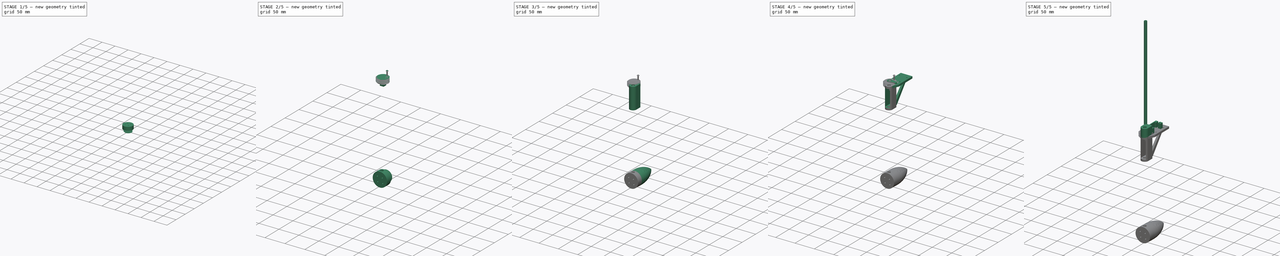
[diagram: build sequence overview — one tinted view per stage of 5, left to right]
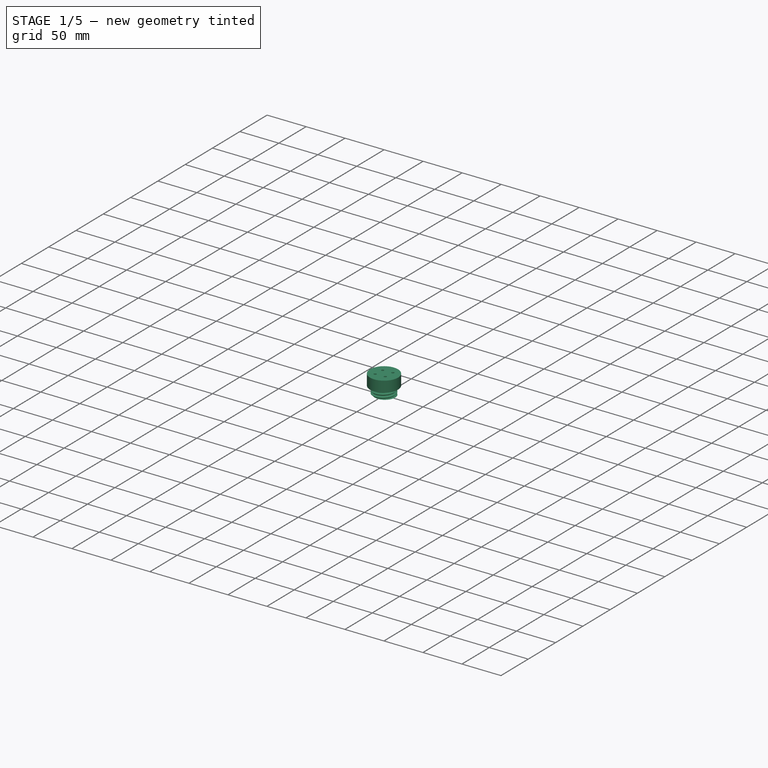
[diagram: stage 1 of 5 — iso view after this stage's code; geometry added in this stage tinted green]
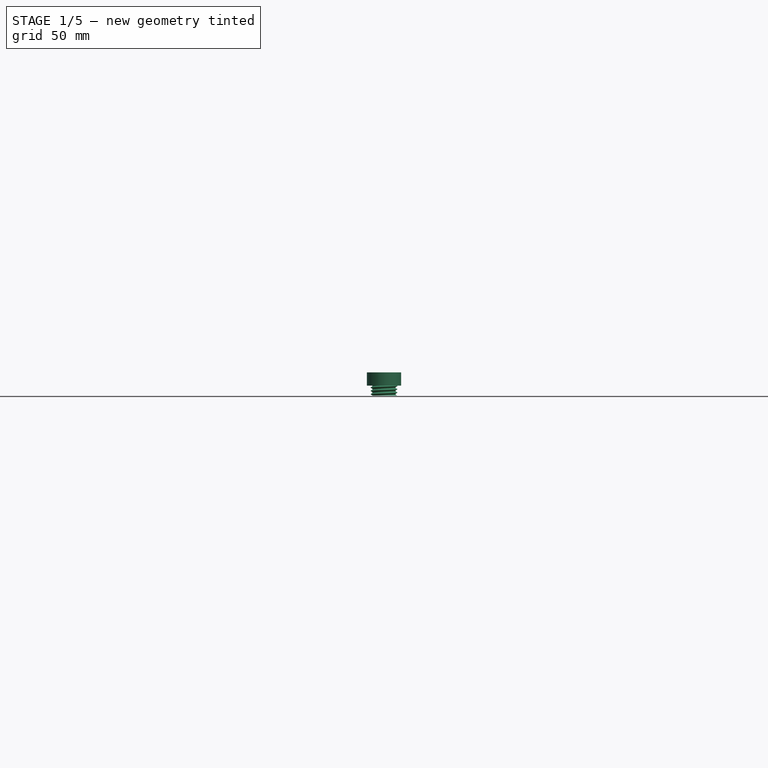
[diagram: stage 1 of 5 — front view after this stage's code; geometry added in this stage tinted green]
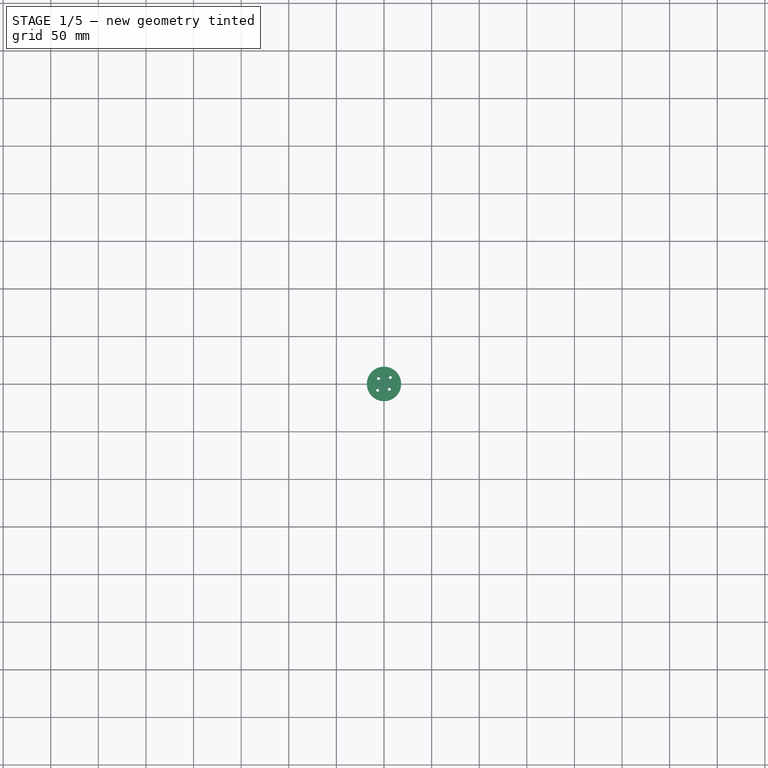
[diagram: stage 1 of 5 — top view after this stage's code; geometry added in this stage tinted green]
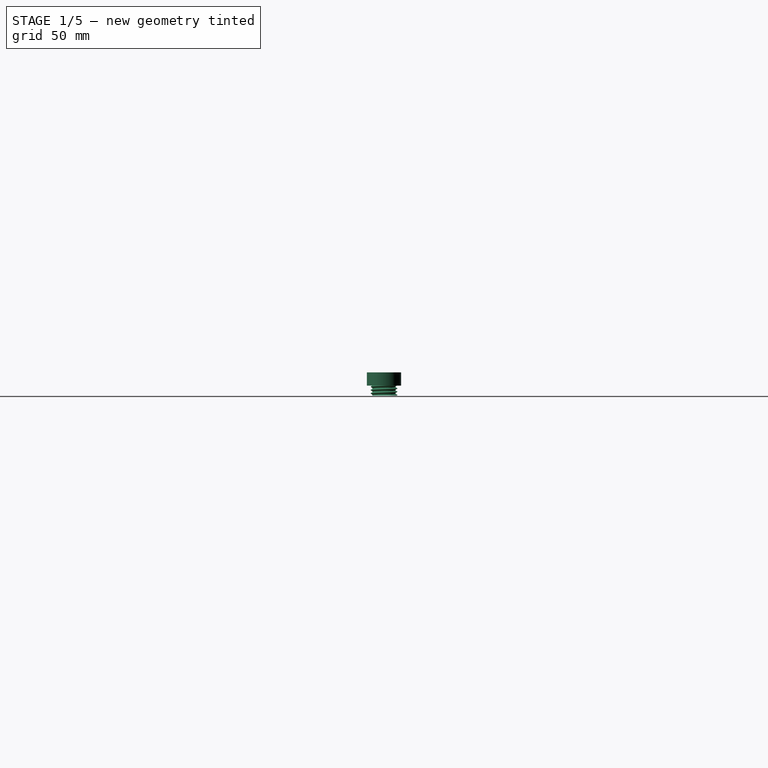
[diagram: stage 1 of 5 — right view after this stage's code; geometry added in this stage tinted green]
FCSTD DOCUMENT  (FreeCAD 0.20R29410 (Git))
Label: Direccion_sg90
License: All rights reserved
LicenseURL: http://en.wikipedia.org/wiki/All_rights_reserved
objects: Sketcher::SketchObject×14, PartDesign::Pad×9, PartDesign::Body×6, Part::FeaturePython×6, PartDesign::Pocket×3, PartDesign::Plane×2, Part::Cut×2, PartDesign::Chamfer×1, PartDesign::Revolution×1, Part::Box×1, Part::Cylinder×1, Part::Fuse×1
note: 61 computed .brp shape members not serialized (recipe doc carries the construction recipe); baked Part::Feature solids carry a one-line shape summary decoded from their .brp

FEATURE [Part::FeaturePython] ScrewTap001  label="M30x10.0-ScrewTap001"  # Fasteners workbench fastener (typed FeaturePython)
  Placement = pos=(0,0,-10.5) rot=(1,0,0;3.14159rad)
  diameter = 17
  invert = false
  length = 10
  matchOuter = true
  offset = 0
  thread = true
FEATURE [Sketcher::SketchObject] Sketch012
  FullyConstrained = true
  MapMode = 5
  Support = -> [XY_Plane005]
  sketch-geometry (9):
    g0: Circle CenterX=0 CenterY=0 CenterZ=0 NormalX=0 NormalY=0 NormalZ=1 AngleXU=0 Radius=18
    g1: Circle CenterX=0 CenterY=0 CenterZ=0 NormalX=0 NormalY=0 NormalZ=1 AngleXU=0 Radius=9.5
    g2: Circle CenterX=0 CenterY=0 CenterZ=0 NormalX=0 NormalY=0 NormalZ=1 AngleXU=0 Radius=8
    g3: LineSegment StartX=-5.65685 StartY=5.65685 StartZ=0 EndX=5.65685 EndY=-5.65685 EndZ=0
    g4: LineSegment StartX=-6.71751 StartY=-6.71751 StartZ=0 EndX=6.71751 EndY=6.71751 EndZ=0
    g5: Circle CenterX=6.71751 CenterY=6.71751 CenterZ=0 NormalX=0 NormalY=0 NormalZ=1 AngleXU=0 Radius=1.6
    g6: Circle CenterX=-5.65685 CenterY=5.65685 CenterZ=0 NormalX=0 NormalY=0 NormalZ=1 AngleXU=0 Radius=1.6
    g7: Circle CenterX=-6.71751 CenterY=-6.71751 CenterZ=0 NormalX=0 NormalY=0 NormalZ=1 AngleXU=0 Radius=1.6
    g8: Circle CenterX=5.65685 CenterY=-5.65685 CenterZ=0 NormalX=0 NormalY=0 NormalZ=1 AngleXU=0 Radius=1.6
  constraints (22):
    c: Coincident(g0,g-1)
    c: Coincident(g1,g0)
    c: Coincident(g2,g0)
    c: Diameter(g1) = 19
    c: Diameter(g2) = 16
    c: Angle(g-1,g4) = 0.785398
    c: PointOnObject(g0,g4)
    c: Angle(g3,g-1) = 0.785398
    c: PointOnObject(g0,g3)
    c: PointOnObject(g3,g2)
    c: PointOnObject(g3,g2)
    c: PointOnObject(g4,g1)
    c: PointOnObject(g4,g1)
    c: Coincident(g5,g4)
    c: Coincident(g6,g3)
    c: Coincident(g7,g4)
    c: Coincident(g8,g3)
    c: Diameter(g5) = 3.2
    c: Equal(g5,g6)
    c: Equal(g5,g8)
    c: Equal(g5,g7)
    c: Diameter(g0) = 36
FEATURE [PartDesign::Pad] Pad008
  Direction = (0,0,1)
  Length = 14
  Length2 = 10
  Profile = -> Sketch012
  ReferenceAxis = -> Sketch012 [N_Axis]
  Type = 0
FEATURE [Part::Cylinder] Cylinder  label="Cilindro"
  Angle = 360
  AttacherType = Attacher::AttachEngine3D
  FirstAngle = 0
  Height = 13
  Placement = pos=(0,0,-12.5) rot=(0,0,1;0rad)
  Radius = 12
  SecondAngle = 0
FEATURE [PartDesign::Body] Body005
  Group = -> [Sketch012,Pad008,Sketch013,Pocket002]
  Origin = -> Origin005
  Tip = -> Pocket002
FEATURE [Part::FeaturePython] Clone002  label="M30x10.0-ScrewTap002"  # Draft clone (typed FeaturePython)
  AttacherType = Attacher::AttachEngine3D
  Fuse = false
  Objects = -> [ScrewTap001]
  Placement = pos=(0,0,-10.5) rot=(1,0,0;3.14159rad)
  Scale = (0.93,0.93,1)
FEATURE [Part::Cut] Cut001
  Base = -> Clone002
  Tool = -> Cylinder
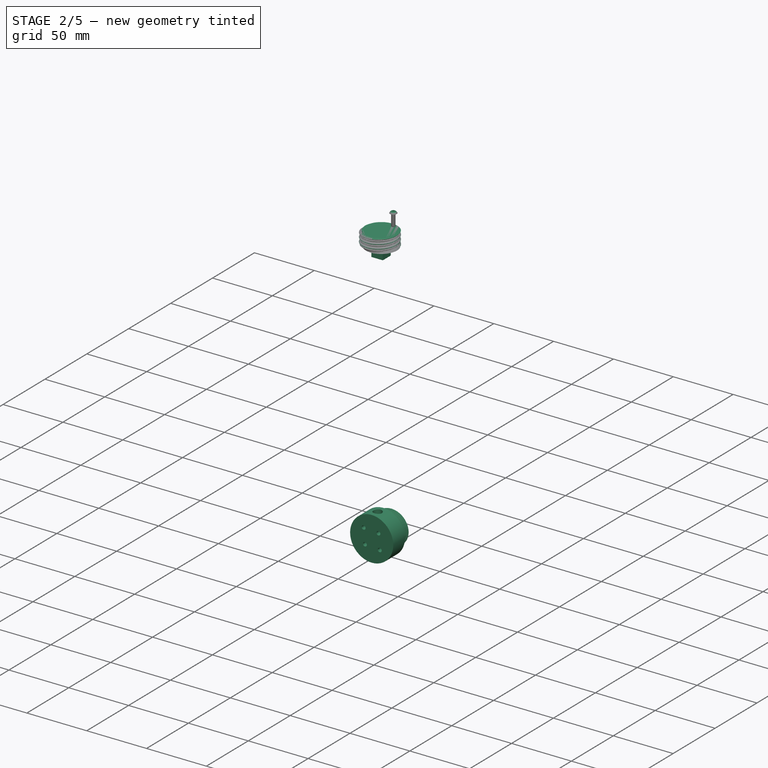
[diagram: stage 2 of 5 — iso view after this stage's code; geometry added in this stage tinted green]
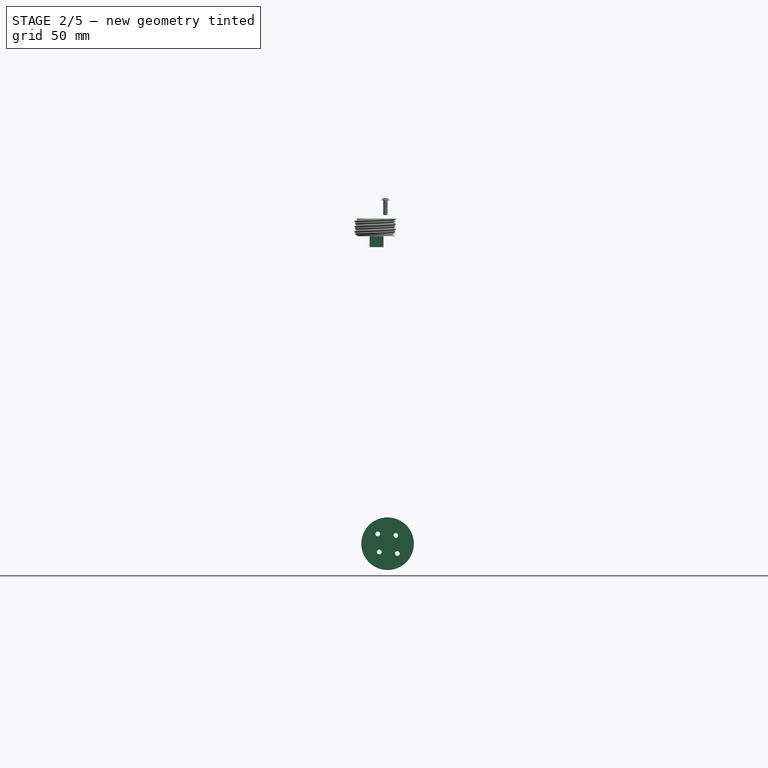
[diagram: stage 2 of 5 — front view after this stage's code; geometry added in this stage tinted green]
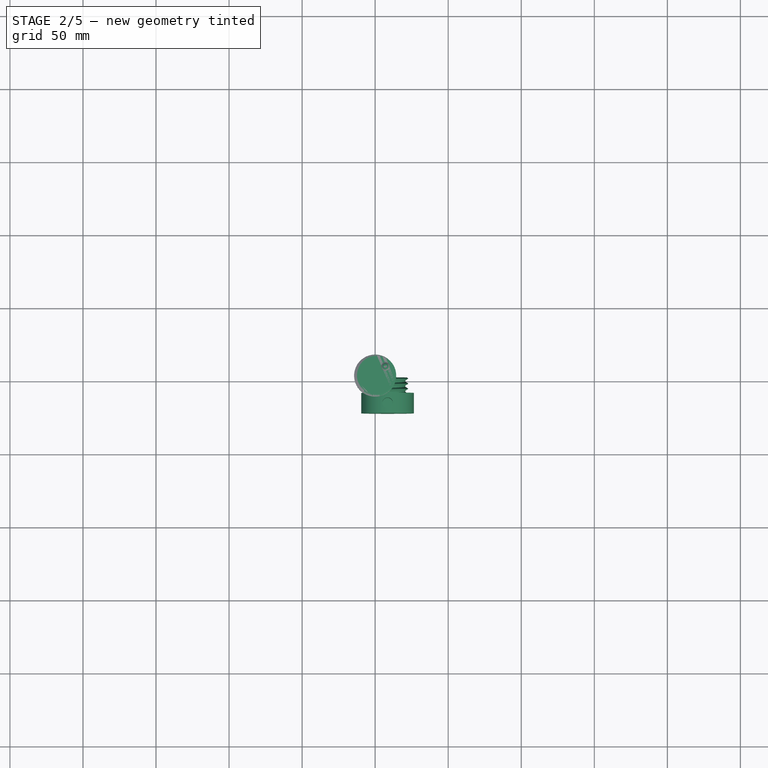
[diagram: stage 2 of 5 — top view after this stage's code; geometry added in this stage tinted green]
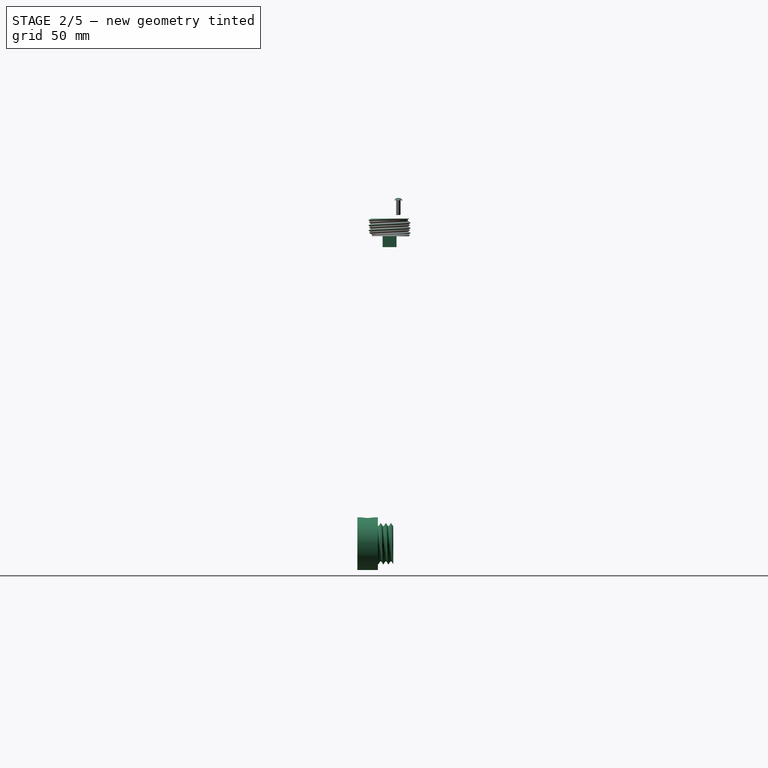
[diagram: stage 2 of 5 — right view after this stage's code; geometry added in this stage tinted green]
FEATURE [Part::FeaturePython] Clone  label="Fusion001"  # WARN: FeaturePython — macro-defined, semantics opaque (R4)
  AttacherType = Attacher::AttachEngine3D
  Fuse = false
  Scale = (0.95,0.95,1)
FEATURE [Part::FeaturePython] Screw  label="M3x10-Screw"  # Fasteners workbench fastener (typed FeaturePython)
  Placement = pos=(7,6,14) rot=(0,0,1;0rad)
  diameter = 1
  invert = false
  length = 2
  lengthCustom = 10
  matchOuter = false
  offset = 0
  thread = false
  type = 38
FEATURE [Part::FeaturePython] Clone001  label="Cut002"  # WARN: FeaturePython — macro-defined, semantics opaque (R4)
  AttacherType = Attacher::AttachEngine3D
  Fuse = false
  Scale = (0.92,0.92,1)
FEATURE [Sketcher::SketchObject] Sketch013
  ExternalGeometry = -> [Pad008]
  FullyConstrained = true
  MapMode = 5
  Placement = pos=(0,0,0) rot=(0.57735,0.57735,0.57735;2.0944rad)
  Support = -> [YZ_Plane005]
  sketch-geometry (1):
    g0: Circle CenterX=0 CenterY=7 CenterZ=0 NormalX=0 NormalY=0 NormalZ=1 AngleXU=0 Radius=3.6
  constraints (3):
    c: PointOnObject(g0,g-2)
    c: Diameter(g0) = 7.2
    c: DistanceY(g-1,g0) = 7
FEATURE [PartDesign::Pocket] Pocket002
  BaseFeature = -> Pad008
  Direction = (-1,2e-16,-3e-16)
  Length = 25
  Length2 = 5
  Profile = -> Sketch013
  ReferenceAxis = -> Sketch013 [N_Axis]
  Type = 0
FEATURE [Part::Fuse] Fusion
  Base = -> Body005
  Placement = pos=(8.5,-8,-221) rot=(-0.57735,-0.57735,0.57735;4.18879rad)
  Tool = -> Cut001
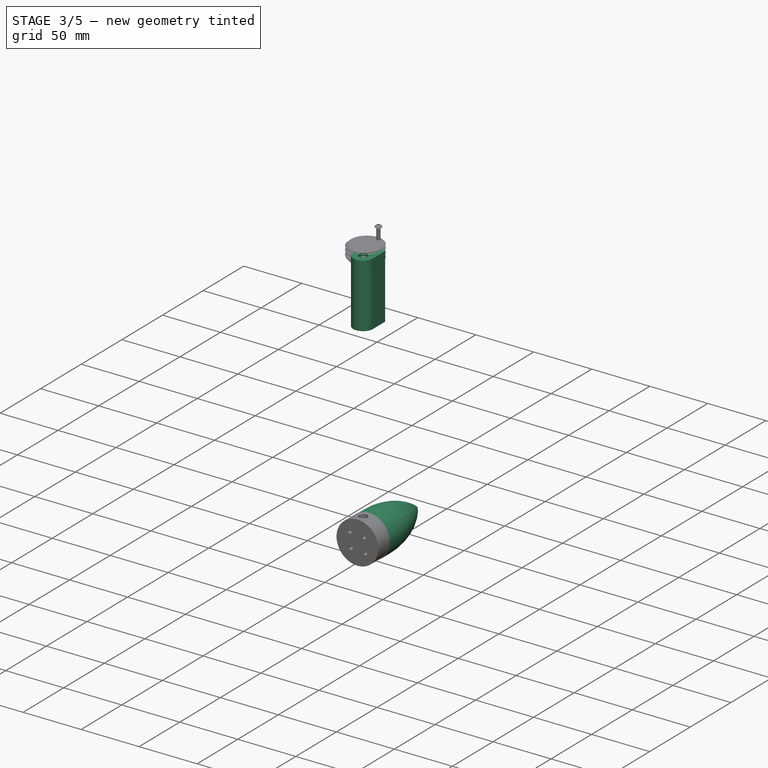
[diagram: stage 3 of 5 — iso view after this stage's code; geometry added in this stage tinted green]
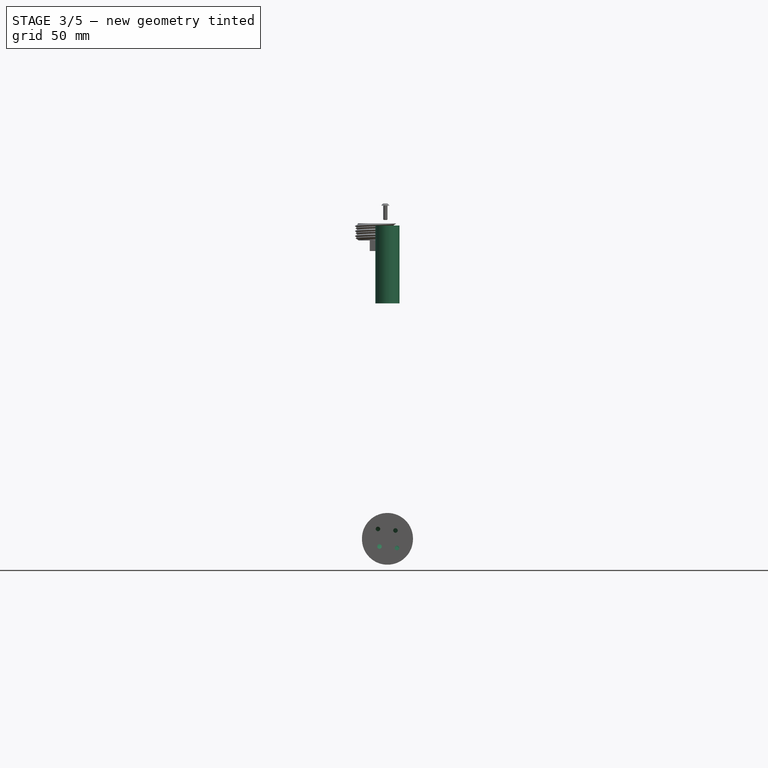
[diagram: stage 3 of 5 — front view after this stage's code; geometry added in this stage tinted green]
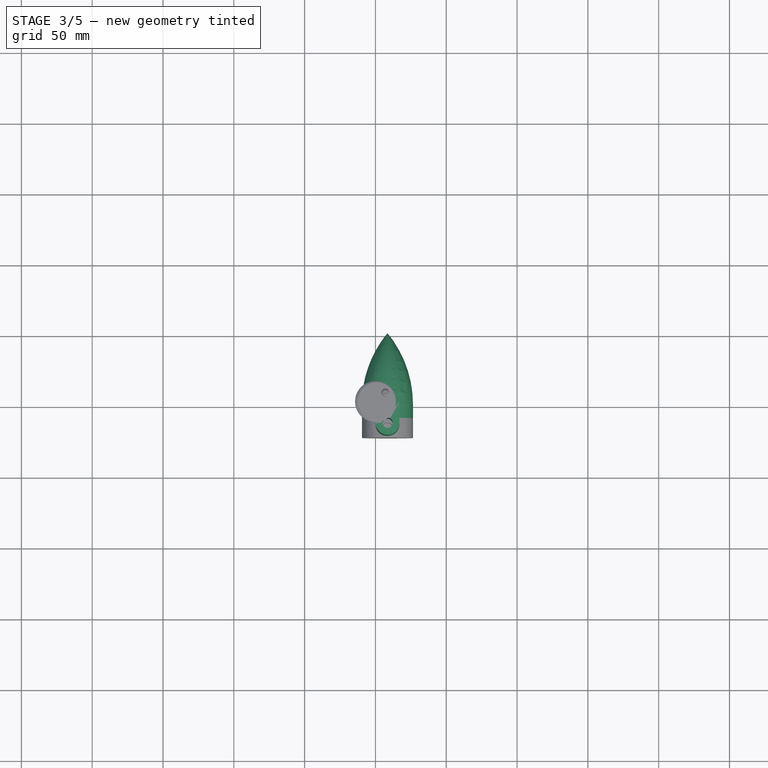
[diagram: stage 3 of 5 — top view after this stage's code; geometry added in this stage tinted green]
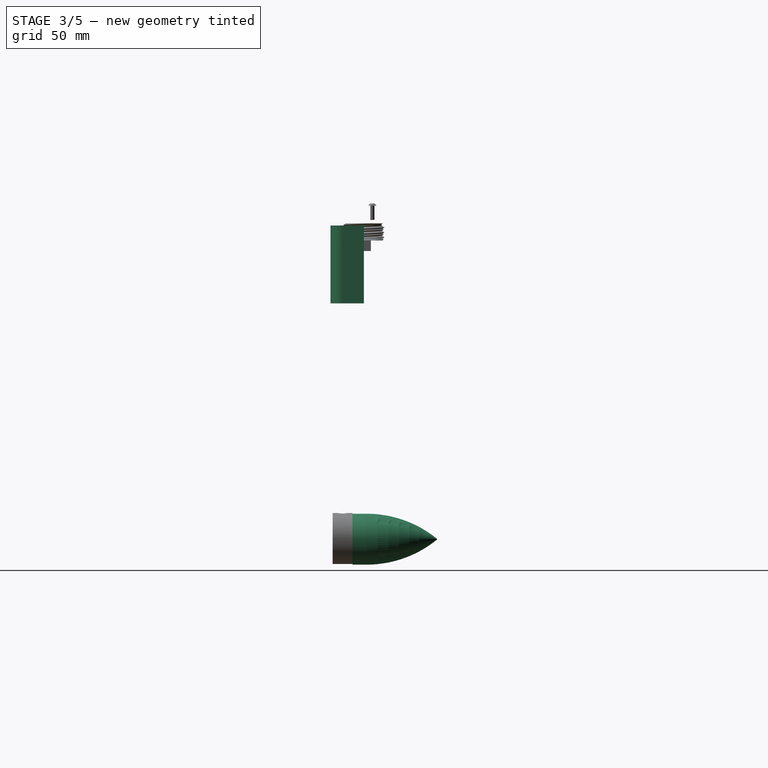
[diagram: stage 3 of 5 — right view after this stage's code; geometry added in this stage tinted green]
FEATURE [PartDesign::Body] Body002  label="EjeSaliente"
  Group = -> [Sketch006,Pad004]
  Origin = -> Origin002
  Placement = pos=(8.5,-15,20) rot=(0,0,1;0rad)
  Tip = -> Pad004
FEATURE [Sketcher::SketchObject] Sketch007
  FullyConstrained = true
  MapMode = 5
  Support = -> [XY_Plane003]
  sketch-geometry (5):
    g0: Circle CenterX=8.5 CenterY=-15 CenterZ=0 NormalX=0 NormalY=0 NormalZ=1 AngleXU=0 Radius=3.65
    g1: ArcOfCircle CenterX=8.5 CenterY=-15 CenterZ=0 NormalX=0 NormalY=0 NormalZ=1 AngleXU=0 Radius=8.5 StartAngle=3.14159 EndAngle=6.28319
    g2: LineSegment StartX=0 StartY=0 StartZ=0 EndX=17 EndY=0 EndZ=0
    g3: LineSegment StartX=17 StartY=0 StartZ=0 EndX=17 EndY=-15 EndZ=0
    g4: LineSegment StartX=0 StartY=-15 StartZ=0 EndX=0 EndY=0 EndZ=0
  constraints (14):
    c: Coincident(g1,g0)
    c: Coincident(g2,g3)
    c: Coincident(g4,g2)
    c: Horizontal(g2)
    c: Vertical(g3)
    c: Vertical(g4)
    c: Coincident(g2,g-1)
    c: Coincident(g1,g4)
    c: Coincident(g1,g3)
    c: DistanceX(g2,g2) = 17
    c: Horizontal(g1,g0)
    c: Horizontal(g0,g1)
    c: DistanceY(g4,g4) = 15
    c: Diameter(g0) = 7.3
FEATURE [PartDesign::Pad] Pad005
  Direction = (0,0,1)
  Length = 55
  Length2 = 10
  Profile = -> Sketch007
  ReferenceAxis = -> Sketch007 [N_Axis]
  Reversed = true
  Type = 0
FEATURE [PartDesign::Body] Body003  label="AletaSoporte"
  Group = -> [Sketch007,Pad005,Sketch008,Pad006,DatumPlane001,Sketch009,Pad007,Sketch010,Pocket001,Chamfer]
  Origin = -> Origin003
  Placement = pos=(0,0,-4) rot=(0,0,1;0rad)
  Tip = -> Chamfer
FEATURE [Sketcher::SketchObject] Sketch011
  FullyConstrained = true
  MapMode = 5
  Placement = pos=(0,0,0) rot=(1,0,0;1.5708rad)
  Support = -> [XZ_Plane004]
  sketch-geometry (7):
    g0: ArcOfCircle CenterX=60.4444 CenterY=10 CenterZ=0 NormalX=0 NormalY=0 NormalZ=1 AngleXU=0 Radius=78.4444 StartAngle=2.45048 EndAngle=3.14159
    g1: LineSegment StartX=-18 StartY=10 StartZ=0 EndX=-18 EndY=0 EndZ=0
    g2: LineSegment StartX=-18 StartY=0 StartZ=0 EndX=0 EndY=0 EndZ=0
    g3: LineSegment StartX=0 StartY=0 StartZ=0 EndX=0 EndY=10 EndZ=0
    g4: LineSegment StartX=0 StartY=10 StartZ=0 EndX=-16.5 EndY=10 EndZ=0
    g5: ArcOfCircle CenterX=62.4444 CenterY=10 CenterZ=0 NormalX=0 NormalY=0 NormalZ=1 AngleXU=0 Radius=78.9444 StartAngle=2.48323 EndAngle=3.14159
    g6: LineSegment StartX=7.1e-15 StartY=60 StartZ=0 EndX=-7.1e-15 EndY=58.3003 EndZ=0
  constraints (22):
    c: PointOnObject(g0,g-2)
    c: DistanceY(g0,g0) = 50
    c: DistanceY(g-1,g0) = 10
    c: Coincident(g1,g0)
    c: PointOnObject(g1,g-1)
    c: Vertical(g1)
    c: Coincident(g2,g1)
    c: Coincident(g2,g-1)
    c: DistanceX(g2,g2) = 18
    c: Horizontal(g0,g0)
    c: Coincident(g3,g2)
    c: PointOnObject(g3,g-2)
    c: DistanceY(g3,g3) = 10
    c: Coincident(g4,g3)
    c: Horizontal(g4)
    c: Coincident(g5,g4)
    c: PointOnObject(g5,g-2)
    c: Coincident(g6,g0)
    c: Coincident(g6,g5)
    c: Horizontal(g5,g0)
    c: DistanceX(g0,g5) = 2
    c: DistanceX(g0,g4) = 1.5
FEATURE [PartDesign::Revolution] Revolution
  Angle = 360
  Axis = (0,-2e-16,1)
  Base = (0,0,0)
  Placement = pos=(0,0,0) rot=(1,0,0;1.5708rad)
  Profile = -> Sketch011
  ReferenceAxis = -> Sketch011 [V_Axis]
FEATURE [PartDesign::Body] Body004  label="SoporteMotor"
  Group = -> [Sketch011,Revolution]
  Origin = -> Origin004
  Tip = -> Revolution
FEATURE [Part::FeaturePython] ScrewTap  label="M30x10.0-ScrewTap"  # Fasteners workbench fastener (typed FeaturePython)
  Placement = pos=(0,0,10.4) rot=(0,0,1;0rad)
  diameter = 17
  invert = false
  length = 10
  matchOuter = false
  offset = 0
  thread = true
FEATURE [Part::Cut] Cut
  Base = -> Body004
  Placement = pos=(8.5,-8,-221.5) rot=(1,0,0;-1.5708rad)
  Tool = -> ScrewTap
FEATURE [Part::Box] Box  label="Cubo"
  AttacherType = Attacher::AttachEngine3D
  Height = 10
  Length = 10
  Placement = pos=(-4,-5,-18) rot=(0,0,1;0rad)
  Width = 10
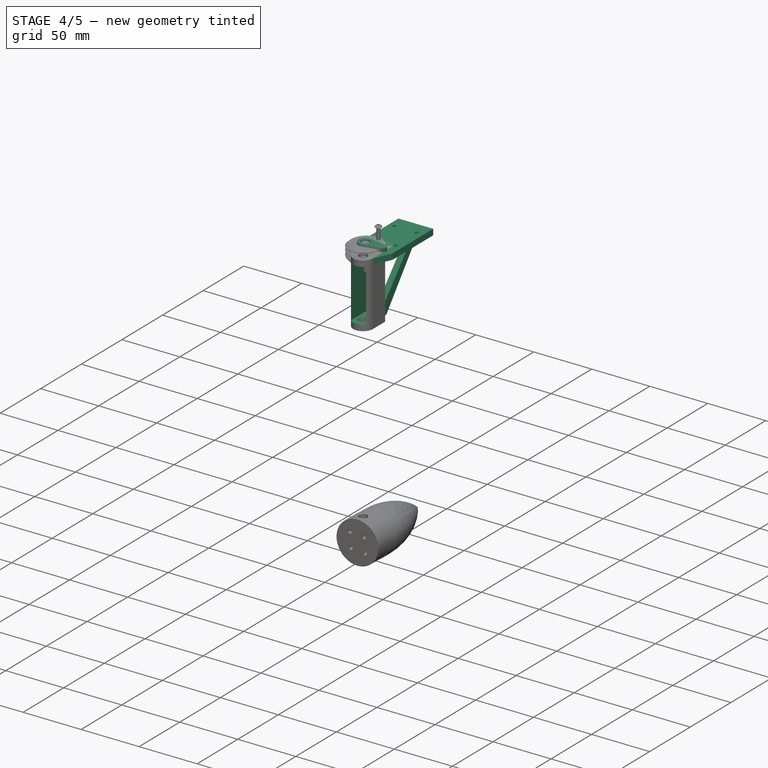
[diagram: stage 4 of 5 — iso view after this stage's code; geometry added in this stage tinted green]
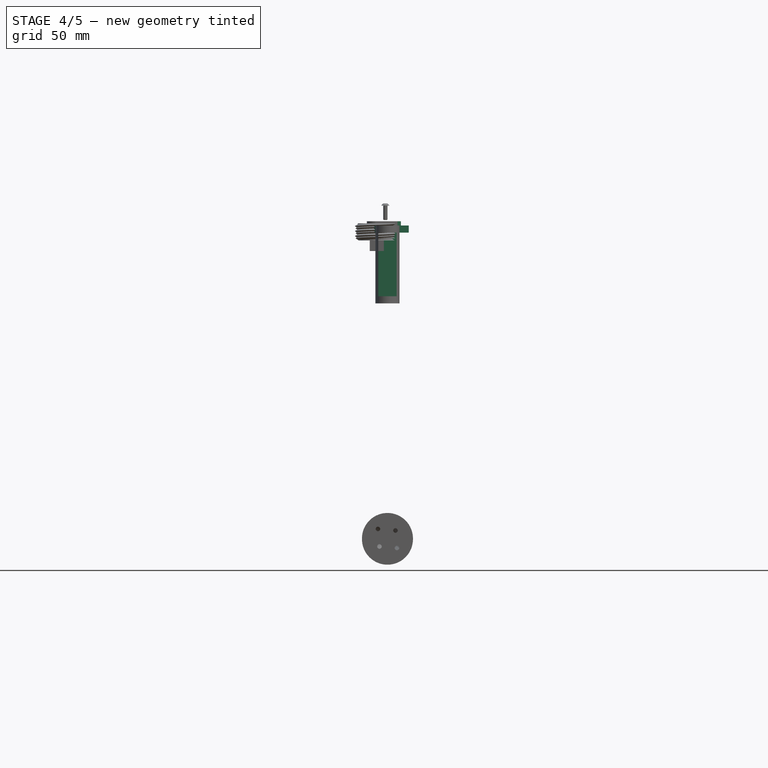
[diagram: stage 4 of 5 — front view after this stage's code; geometry added in this stage tinted green]
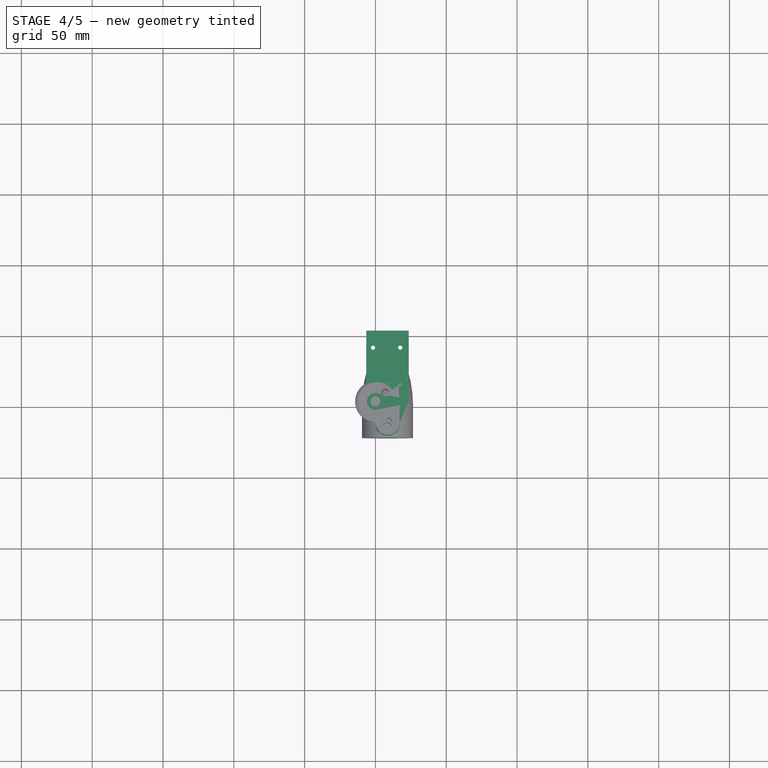
[diagram: stage 4 of 5 — top view after this stage's code; geometry added in this stage tinted green]
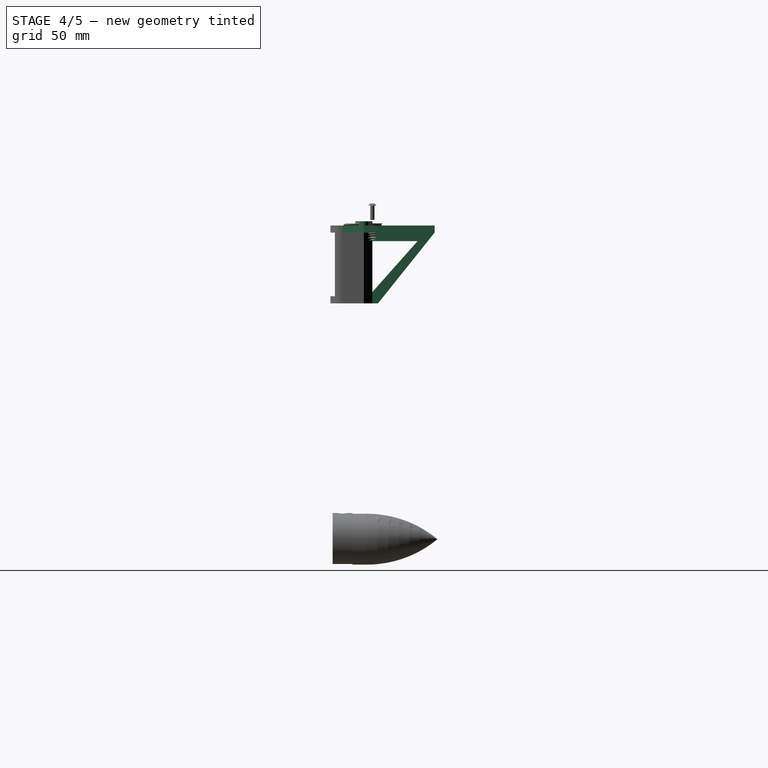
[diagram: stage 4 of 5 — right view after this stage's code; geometry added in this stage tinted green]
FEATURE [PartDesign::Body] Body001  label="EjeDireccion"
  Group = -> [Sketch005,Pad003]
  Origin = -> Origin001
  Placement = pos=(8.5,-15,-227) rot=(0,0,1;0rad)
  Tip = -> Pad003
FEATURE [Sketcher::SketchObject] Sketch006
  FullyConstrained = true
  MapMode = 5
  Support = -> [XY_Plane002]
  sketch-geometry (5):
    g0: ArcOfCircle CenterX=0 CenterY=0 CenterZ=0 NormalX=0 NormalY=0 NormalZ=1 AngleXU=0 Radius=6 StartAngle=1.5708 EndAngle=4.71239
    g1: ArcOfCircle CenterX=15 CenterY=0 CenterZ=0 NormalX=0 NormalY=0 NormalZ=1 AngleXU=0 Radius=3 StartAngle=4.90612 EndAngle=7.66025
    g2: LineSegment StartX=4e-16 StartY=6 StartZ=0 EndX=15.5776 EndY=2.94388 EndZ=0
    g3: LineSegment StartX=-1.1e-15 StartY=-6 StartZ=0 EndX=15.5776 EndY=-2.94388 EndZ=0
    g4: Circle CenterX=0 CenterY=0 CenterZ=0 NormalX=0 NormalY=0 NormalZ=1 AngleXU=0 Radius=3.5
  constraints (14):
    c: Coincident(g0,g-1)
    c: PointOnObject(g0,g-2)
    c: PointOnObject(g0,g-2)
    c: PointOnObject(g1,g-1)
    c: Coincident(g2,g0)
    c: Tangent(g2,g1) = 1.5708
    c: Coincident(g2,g1)
    c: Coincident(g3,g0)
    c: Tangent(g1,g3) = -1.5708
    c: Coincident(g4,g0)
    c: Diameter(g4) = 7
    c: Diameter(g0) = 12
    c: DistanceX(g0,g1) = 15
    c: Diameter(g1) = 6
FEATURE [PartDesign::Pad] Pad004
  Direction = (0,0,1)
  Length = 3
  Length2 = 10
  Profile = -> Sketch006
  ReferenceAxis = -> Sketch006 [N_Axis]
  Type = 0
FEATURE [Sketcher::SketchObject] Sketch008
  ExternalGeometry = -> [Pad005]
  FullyConstrained = false
  MapMode = 5
  Support = -> [XY_Plane003]
  sketch-geometry (15):
    g0: LineSegment StartX=8.5 StartY=0 StartZ=0 EndX=8.5 EndY=50 EndZ=0
    g1: LineSegment StartX=0 StartY=0 StartZ=0 EndX=17 EndY=0 EndZ=0
    g2: LineSegment StartX=23.5 StartY=0 StartZ=0 EndX=23.5 EndY=50 EndZ=0
    g3: LineSegment StartX=23.5 StartY=50 StartZ=0 EndX=-6.5 EndY=50 EndZ=0
    g4: LineSegment StartX=-6.5 StartY=50 StartZ=0 EndX=-6.5 EndY=0 EndZ=0
    g5: Circle CenterX=17.5 CenterY=12 CenterZ=0 NormalX=0 NormalY=0 NormalZ=1 AngleXU=0 Radius=1.5
    g6: LineSegment StartX=-6.5 StartY=0 StartZ=0 EndX=0 EndY=0 EndZ=0
    g7: LineSegment StartX=17 StartY=0 StartZ=0 EndX=23.5 EndY=0 EndZ=0
    g8: Circle CenterX=17.5 CenterY=38 CenterZ=0 NormalX=0 NormalY=0 NormalZ=1 AngleXU=0 Radius=1.5
    g9: Circle CenterX=-1.69442 CenterY=38 CenterZ=0 NormalX=0 NormalY=0 NormalZ=1 AngleXU=0 Radius=1.5
    g10: Circle CenterX=-1.69442 CenterY=12 CenterZ=0 NormalX=0 NormalY=0 NormalZ=1 AngleXU=0 Radius=1.5
    g11: LineSegment StartX=17 StartY=-15 StartZ=0 EndX=23.5 EndY=0 EndZ=0
    g12: LineSegment StartX=0 StartY=-15 StartZ=0 EndX=-6.5 EndY=0 EndZ=0
    g13: ArcOfCircle CenterX=8.5 CenterY=-15 CenterZ=0 NormalX=0 NormalY=0 NormalZ=1 AngleXU=0 Radius=8.5 StartAngle=3.14159 EndAngle=6.28319
    g14: Circle CenterX=8.5 CenterY=-15 CenterZ=0 NormalX=0 NormalY=0 NormalZ=1 AngleXU=0 Radius=3.7
  constraints (38):
    c: DistanceY(g0,g0) = 50
    c: Symmetric(g-3,g-3,g0)
    c: Horizontal(g0,g-3)
    c: Coincident(g2,g3)
    c: Coincident(g3,g4)
    c: Horizontal(g3)
    c: Vertical(g2)
    c: Vertical(g4)
    c: Coincident(g1,g-3)
    c: Coincident(g1,g-3)
    c: Horizontal(g2,g0)
    c: Diameter(g5) = 3
    c: Symmetric(g2,g4,g0)
    c: Horizontal(g2,g1)
    c: Coincident(g6,g4)
    c: Coincident(g6,g1)
    c: Coincident(g7,g1)
    c: Coincident(g7,g2)
    c: DistanceX(g3,g3) = 30
    c: DistanceX(g5,g2) = 6
    c: DistanceY(g2,g5) = 12
    c: Equal(g8,g5)
    c: Equal(g8,g9)
    c: Equal(g9,g10)
    c: Horizontal(g10,g5)
    c: Vertical(g10,g9)
    c: Horizontal(g9,g8)
    c: Vertical(g5,g8)
    c: DistanceY(g8,g2) = 12
    c: Coincident(g11,g-4)
    c: Coincident(g11,g2)
    c: Coincident(g12,g-4)
    c: Coincident(g12,g4)
    c: Coincident(g13,g-4)
    c: Coincident(g13,g12)
    c: Coincident(g13,g11)
    c: Coincident(g14,g13)
    c: Diameter(g14) = 7.4
FEATURE [PartDesign::Pad] Pad006
  BaseFeature = -> Pad005
  Direction = (0,0,1)
  Length = 5
  Length2 = 10
  Profile = -> Sketch008
  ReferenceAxis = -> Sketch008 [N_Axis]
  Reversed = true
  Type = 0
FEATURE [PartDesign::Plane] DatumPlane001
  AttachmentOffset = pos=(0,1,8.5) rot=(0,0,1;0rad)
  Length = 90.4919
  MapMode = 2
  Placement = pos=(8.5,-1.7e-15,1) rot=(0.57735,0.57735,0.57735;2.0944rad)
  ResizeMode = 0
  Support = -> [YZ_Plane003]
  Width = 95.4919
FEATURE [Sketcher::SketchObject] Sketch009
  ExternalGeometry = -> [Pad006]
  FullyConstrained = true
  MapMode = 5
  Placement = pos=(8.5,-1.7e-15,1) rot=(0.57735,0.57735,0.57735;2.0944rad)
  Support = -> [DatumPlane001]
  sketch-geometry (7):
    g0: LineSegment StartX=0 StartY=-56 StartZ=0 EndX=0 EndY=-6 EndZ=0
    g1: LineSegment StartX=10 StartY=-56 StartZ=0 EndX=50 EndY=-6 EndZ=0
    g2: LineSegment StartX=0 StartY=-6 StartZ=0 EndX=50 EndY=-6 EndZ=0
    g3: LineSegment StartX=0 StartY=-56 StartZ=0 EndX=10 EndY=-56 EndZ=0
    g4: LineSegment StartX=6 StartY=-12 StartZ=0 EndX=6 EndY=-48 EndZ=0
    g5: LineSegment StartX=6 StartY=-12 StartZ=0 EndX=38 EndY=-12 EndZ=0
    g6: LineSegment StartX=38 StartY=-12 StartZ=0 EndX=6 EndY=-48 EndZ=0
  constraints (19):
    c: PointOnObject(g0,g-2)
    c: DistanceY(g0,g0) = 50
    c: Coincident(g1,g-3)
    c: Coincident(g2,g0)
    c: Coincident(g2,g1)
    c: Coincident(g0,g-3)
    c: Coincident(g3,g0)
    c: Coincident(g3,g1)
    c: Horizontal(g3)
    c: DistanceX(g3,g3) = 10
    c: Vertical(g4)
    c: Coincident(g5,g4)
    c: Horizontal(g5)
    c: Coincident(g6,g5)
    c: Coincident(g6,g4)
    c: DistanceX(g0,g4) = 6
    c: DistanceY(g4,g0) = 6
    c: DistanceX(g5,g1) = 12
    c: DistanceY(g4,g4) = 36
FEATURE [PartDesign::Pad] Pad007
  BaseFeature = -> Pad006
  Direction = (1,-1e-16,1e-16)
  Length = 5
  Length2 = 10
  Midplane = true
  Profile = -> Sketch009
  ReferenceAxis = -> Sketch009 [N_Axis]
  Type = 0
FEATURE [Sketcher::SketchObject] Sketch010
  ExternalGeometry = -> [Pad007]
  FullyConstrained = true
  MapMode = 5
  Placement = pos=(8.5,-1.7e-15,1) rot=(0.57735,0.57735,0.57735;2.0944rad)
  Support = -> [DatumPlane001]
  sketch-geometry (4):
    g0: LineSegment StartX=-42 StartY=-6 StartZ=0 EndX=-2 EndY=-6 EndZ=0
    g1: LineSegment StartX=-2 StartY=-6 StartZ=0 EndX=-2 EndY=-51 EndZ=0
    g2: LineSegment StartX=-2 StartY=-51 StartZ=0 EndX=-42 EndY=-51 EndZ=0
    g3: LineSegment StartX=-42 StartY=-51 StartZ=0 EndX=-42 EndY=-6 EndZ=0
  constraints (13):
    c: Coincident(g2,g3)
    c: Coincident(g3,g0)
    c: Horizontal(g0)
    c: Horizontal(g2)
    c: Vertical(g1)
    c: Vertical(g3)
    c: DistanceX(g0,g0) = 40
    c: DistanceY(g1,g1) = 45
    c: Coincident(g1,g0)
    c: DistanceX(g-3) = 0
    c: PointOnObject(g0,g-3)
    c: DistanceX(g0,g-3) = 2
    c: Coincident(g1,g2)
FEATURE [PartDesign::Pocket] Pocket001
  BaseFeature = -> Pad007
  Direction = (-1,1e-16,-1e-16)
  Length = 13
  Length2 = 5
  Midplane = true
  Profile = -> Sketch010
  ReferenceAxis = -> Sketch010 [N_Axis]
  Type = 0
FEATURE [PartDesign::Chamfer] Chamfer
  Angle = 45
  Base = -> Pocket001 [Edge78,Edge71]
  BaseFeature = -> Pocket001
  ChamferType = 0
  FlipDirection = false
  Size = 5.99
  Size2 = 1
  SupportTransform = false
  UseAllEdges = false
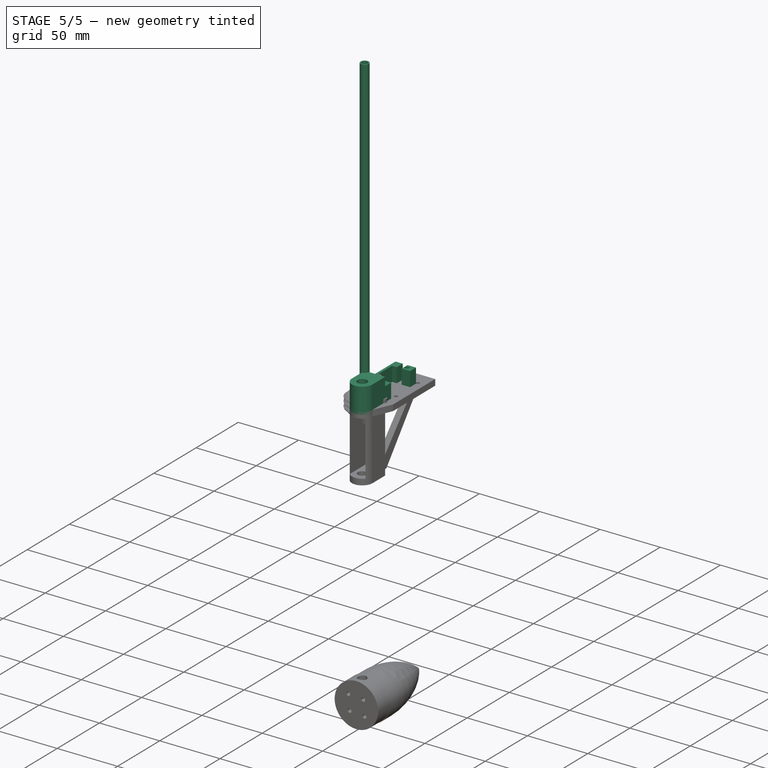
[diagram: stage 5 of 5 — iso view after this stage's code; geometry added in this stage tinted green]
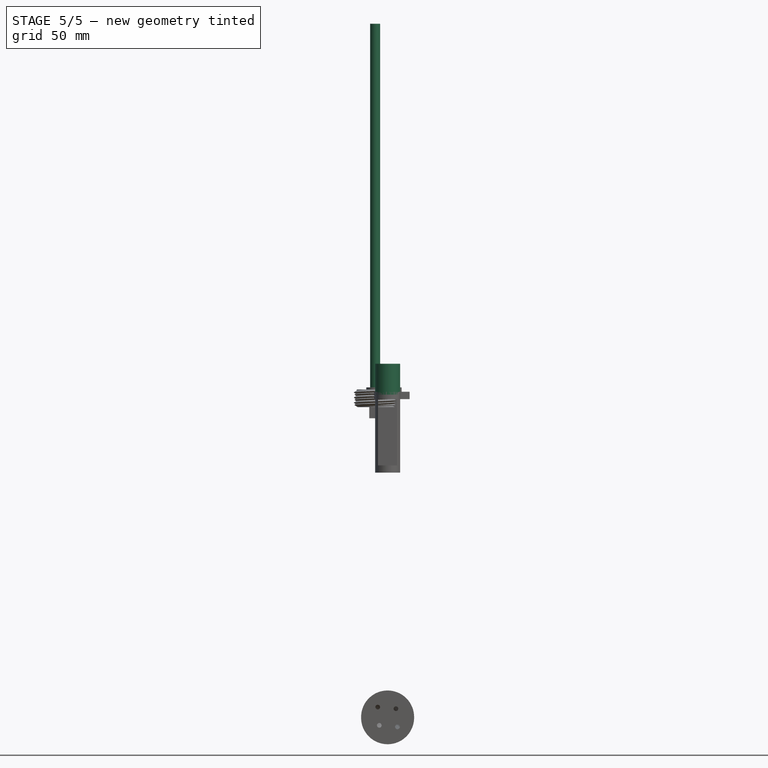
[diagram: stage 5 of 5 — front view after this stage's code; geometry added in this stage tinted green]
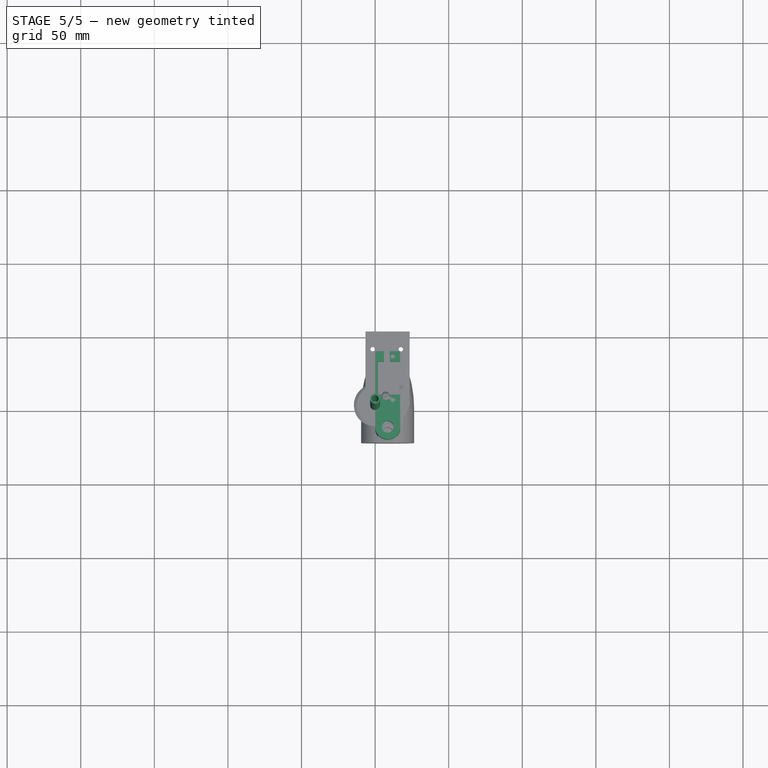
[diagram: stage 5 of 5 — top view after this stage's code; geometry added in this stage tinted green]
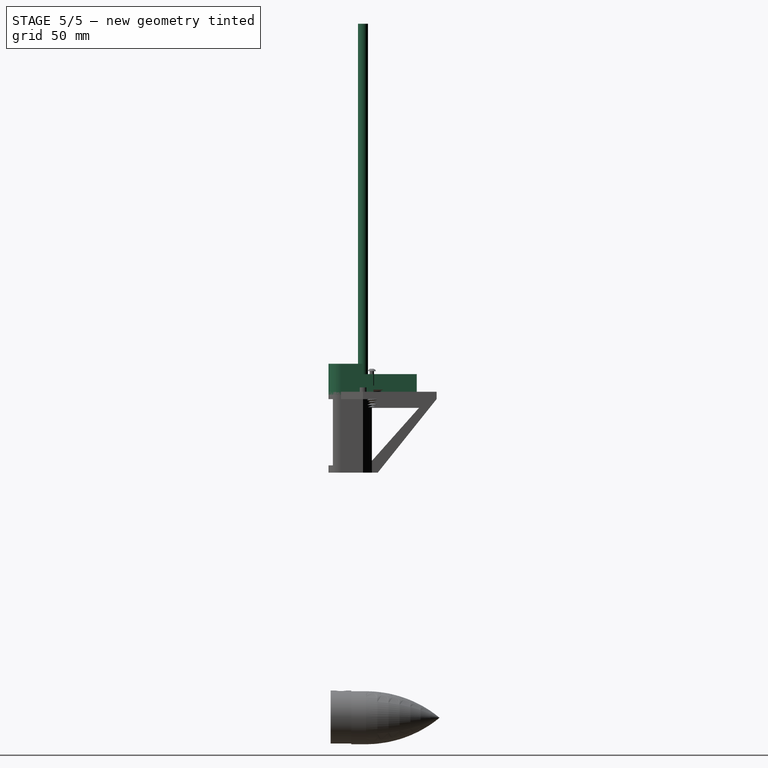
[diagram: stage 5 of 5 — right view after this stage's code; geometry added in this stage tinted green]
FEATURE [Sketcher::SketchObject] Sketch
  FullyConstrained = false
  MapMode = 5
  Support = -> [XY_Plane]
  sketch-geometry (12):
    g0: LineSegment StartX=0 StartY=0 StartZ=0 EndX=17 EndY=0 EndZ=0
    g1: LineSegment StartX=0 StartY=36.5 StartZ=0 EndX=0 EndY=0 EndZ=0
    g2: LineSegment StartX=17 StartY=0 StartZ=0 EndX=17 EndY=7 EndZ=0
    g3: LineSegment StartX=2 StartY=29.5 StartZ=0 EndX=2 EndY=7 EndZ=0
    g4: LineSegment StartX=2 StartY=7 StartZ=0 EndX=17 EndY=7 EndZ=0
    g5: LineSegment StartX=0 StartY=36.5 StartZ=0 EndX=17 EndY=36.5 EndZ=0
    g6: LineSegment StartX=2 StartY=29.5 StartZ=0 EndX=17 EndY=29.5 EndZ=0
    g7: LineSegment StartX=17 StartY=36.5 StartZ=0 EndX=17 EndY=29.5 EndZ=0
    g8: Circle CenterX=12 CenterY=33 CenterZ=0 NormalX=0 NormalY=0 NormalZ=1 AngleXU=0 Radius=1.55
    g9: Circle CenterX=12 CenterY=3.5 CenterZ=0 NormalX=0 NormalY=0 NormalZ=1 AngleXU=0 Radius=1.55
    g10: LineSegment StartX=-9.5547 StartY=33 StartZ=0 EndX=32.3515 EndY=33 EndZ=0
    g11: LineSegment StartX=-4.19735 StartY=3.5 StartZ=0 EndX=25.146 EndY=3.5 EndZ=0
  constraints (31):
    c: Coincident(g1,g0)
    c: Horizontal(g0)
    c: Vertical(g1)
    c: Coincident(g0,g-1)
    c: DistanceX(g0,g0) = 17
    c: Coincident(g2,g0)
    c: Vertical(g2)
    c: DistanceY(g2,g2) = 7
    c: Vertical(g3)
    c: Coincident(g4,g3)
    c: Horizontal(g4)
    c: DistanceX(g0,g3) = 2
    c: Coincident(g4,g2)
    c: DistanceY(g3,g3) = 22.5
    c: DistanceY(g3,g1) = 7
    c: Coincident(g5,g1)
    c: Horizontal(g5)
    c: Coincident(g6,g3)
    c: Horizontal(g6)
    c: Coincident(g7,g5)
    c: Coincident(g7,g6)
    c: Vertical(g7)
    c: Vertical(g6,g2)
    c: DistanceX(g8,g5) = 5
    c: Symmetric(g6,g5,g10)
    c: PointOnObject(g8,g10)
    c: Diameter(g8) = 3.1
    c: Vertical(g9,g8)
    c: Symmetric(g0,g2,g11)
    c: PointOnObject(g9,g11)
    c: Diameter(g9) = 3.1
FEATURE [PartDesign::Pad] Pad
  Direction = (0,0,1)
  Length = 12
  Length2 = 10
  Profile = -> Sketch
  ReferenceAxis = -> Sketch [N_Axis]
  Type = 0
FEATURE [PartDesign::Plane] DatumPlane
  AttachmentOffset = pos=(0,0,12) rot=(0,0,1;0rad)
  Length = 62.2474
  MapMode = 5
  Placement = pos=(0,0,12) rot=(0,0,1;0rad)
  ResizeMode = 0
  Support = -> [XY_Plane]
  Width = 87.2474
FEATURE [Sketcher::SketchObject] Sketch001
  ExternalGeometry = -> [Pad]
  FullyConstrained = false
  MapMode = 5
  Support = -> [XY_Plane]
  sketch-geometry (9):
    g0: LineSegment StartX=-6.5 StartY=50 StartZ=0 EndX=23.5 EndY=50 EndZ=0
    g1: LineSegment StartX=23.5 StartY=50 StartZ=0 EndX=23.5 EndY=0 EndZ=0
    g2: LineSegment StartX=23.5 StartY=0 StartZ=0 EndX=-6.5 EndY=0 EndZ=0
    g3: LineSegment StartX=-6.5 StartY=0 StartZ=0 EndX=-6.5 EndY=50 EndZ=0
    g4: LineSegment StartX=8.5 StartY=53.5597 StartZ=0 EndX=8.5 EndY=-7.53421 EndZ=0
    g5: Circle CenterX=-1.7 CenterY=38 CenterZ=0 NormalX=0 NormalY=0 NormalZ=1 AngleXU=0 Radius=1.6
    g6: Circle CenterX=-1.7 CenterY=12 CenterZ=0 NormalX=0 NormalY=0 NormalZ=1 AngleXU=0 Radius=1.6
    g7: Circle CenterX=17.5 CenterY=12 CenterZ=0 NormalX=0 NormalY=0 NormalZ=1 AngleXU=0 Radius=1.6
    g8: Circle CenterX=17.5 CenterY=38 CenterZ=0 NormalX=0 NormalY=0 NormalZ=1 AngleXU=0 Radius=1.6
  constraints (25):
    c: Coincident(g0,g1)
    c: Coincident(g1,g2)
    c: Coincident(g2,g3)
    c: Coincident(g3,g0)
    c: Horizontal(g0)
    c: Horizontal(g2)
    c: Vertical(g1)
    c: DistanceX(g0,g0) = 30
    c: Vertical(g3)
    c: PointOnObject(g1,g-1)
    c: DistanceX(g-1,g4) = 8.5
    c: Symmetric(g0,g0,g4)
    c: DistanceY(g1,g1) = 50
    c: Diameter(g5) = 3.2
    c: DistanceX(g0,g5) = 4.8
    c: DistanceY(g5,g0) = 12
    c: Horizontal(g8,g5)
    c: Equal(g5,g8)
    c: DistanceX(g8,g0) = 6
    c: Equal(g6,g5)
    c: Equal(g6,g7)
    c: Vertical(g5,g6)
    c: Horizontal(g6,g7)
    c: DistanceY(g2,g6) = 12
    c: Vertical(g7,g8)
FEATURE [PartDesign::Pad] Pad001
  BaseFeature = -> Pad
  Direction = (0,0,1)
  Length = 2
  Length2 = 10
  Profile = -> Sketch001
  ReferenceAxis = -> Sketch001 [N_Axis]
  Reversed = true
  Type = 0
FEATURE [Sketcher::SketchObject] Sketch002
  ExternalGeometry = -> [Pad001]
  FullyConstrained = true
  MapMode = 5
  Placement = pos=(0,0,12) rot=(0,0,1;0rad)
  Support = -> [DatumPlane]
  sketch-geometry (4):
    g0: LineSegment StartX=10 StartY=29.5 StartZ=0 EndX=6 EndY=29.5 EndZ=0
    g1: LineSegment StartX=6 StartY=29.5 StartZ=0 EndX=6 EndY=36.5 EndZ=0
    g2: LineSegment StartX=6 StartY=36.5 StartZ=0 EndX=10 EndY=36.5 EndZ=0
    g3: LineSegment StartX=10 StartY=36.5 StartZ=0 EndX=10 EndY=29.5 EndZ=0
  constraints (12):
    c: Coincident(g0,g1)
    c: Coincident(g1,g2)
    c: Coincident(g2,g3)
    c: Coincident(g3,g0)
    c: Horizontal(g0)
    c: Horizontal(g2)
    c: Vertical(g1)
    c: Vertical(g3)
    c: DistanceX(g0,g0) = 4
    c: DistanceX(g-4,g1) = 4
    c: PointOnObject(g2,g-6)
    c: PointOnObject(g0,g-5)
FEATURE [PartDesign::Pocket] Pocket
  BaseFeature = -> Pad001
  Direction = (0,0,-1)
  Length = 12
  Length2 = 5
  Profile = -> Sketch002
  ReferenceAxis = -> Sketch002 [N_Axis]
  Type = 0
FEATURE [Sketcher::SketchObject] Sketch003
  FullyConstrained = true
  MapMode = 5
  Placement = pos=(0,0,0) rot=(1,0,0;1.5708rad)
  Support = -> [XZ_Plane]
  sketch-geometry (4):
    g0: LineSegment StartX=0 StartY=0 StartZ=0 EndX=17 EndY=0 EndZ=0
    g1: LineSegment StartX=17 StartY=0 StartZ=0 EndX=17 EndY=12 EndZ=0
    g2: LineSegment StartX=17 StartY=12 StartZ=0 EndX=0 EndY=12 EndZ=0
    g3: LineSegment StartX=0 StartY=12 StartZ=0 EndX=0 EndY=0 EndZ=0
  constraints (11):
    c: Coincident(g0,g1)
    c: Coincident(g1,g2)
    c: Coincident(g2,g3)
    c: Coincident(g3,g0)
    c: Horizontal(g0)
    c: Horizontal(g2)
    c: Vertical(g1)
    c: Vertical(g3)
    c: Coincident(g0,g-1)
    c: DistanceY(g1,g1) = 12
    c: DistanceX(g2,g2) = 17
FEATURE [Sketcher::SketchObject] Sketch004
  FullyConstrained = true
  MapMode = 5
  Support = -> [XY_Plane]
  sketch-geometry (5):
    g0: Circle CenterX=8.5 CenterY=-15 CenterZ=0 NormalX=0 NormalY=0 NormalZ=1 AngleXU=0 Radius=4
    g1: ArcOfCircle CenterX=8.5 CenterY=-15 CenterZ=0 NormalX=0 NormalY=0 NormalZ=1 AngleXU=0 Radius=8.5 StartAngle=3.14159 EndAngle=6.28319
    g2: LineSegment StartX=17 StartY=-15 StartZ=0 EndX=17 EndY=0 EndZ=0
    g3: LineSegment StartX=17 StartY=0 StartZ=0 EndX=0 EndY=0 EndZ=0
    g4: LineSegment StartX=0 StartY=0 StartZ=0 EndX=0 EndY=-15 EndZ=0
  constraints (15):
    c: DistanceX(g-1,g0) = 8.5
    c: Diameter(g0) = 8
    c: DistanceY(g0,g-1) = 15
    c: Coincident(g1,g0)
    c: PointOnObject(g1,g-2)
    c: Horizontal(g1,g1)
    c: Diameter(g1) = 17
    c: Coincident(g2,g1)
    c: Vertical(g2)
    c: Coincident(g3,g2)
    c: PointOnObject(g3,g-2)
    c: Horizontal(g3)
    c: Coincident(g4,g3)
    c: Coincident(g4,g1)
    c: PointOnObject(g3,g-1)
FEATURE [PartDesign::Pad] Pad002
  BaseFeature = -> Pocket
  Direction = (0,0,1)
  Length = 19
  Length2 = 2
  Profile = -> Sketch004
  ReferenceAxis = -> Sketch004 [N_Axis]
  Type = 4
FEATURE [PartDesign::Body] Body  label="SoporteSevo"
  Group = -> [Sketch,Pad,DatumPlane,Sketch001,Pad001,Sketch002,Pocket,Sketch003,Sketch004,Pad002]
  Origin = -> Origin
  Tip = -> Pad002
FEATURE [Sketcher::SketchObject] Sketch005
  FullyConstrained = true
  MapMode = 5
  Support = -> [XY_Plane001]
  sketch-geometry (2):
    g0: Circle CenterX=0 CenterY=0 CenterZ=0 NormalX=0 NormalY=0 NormalZ=1 AngleXU=0 Radius=3.4
    g1: Circle CenterX=0 CenterY=0 CenterZ=0 NormalX=0 NormalY=0 NormalZ=1 AngleXU=0 Radius=2.4
  constraints (4):
    c: Coincident(g0,g-1)
    c: Diameter(g0) = 6.8
    c: Coincident(g1,g0)
    c: Diameter(g1) = 4.8
FEATURE [PartDesign::Pad] Pad003
  Direction = (0,0,1)
  Length = 250
  Length2 = 10
  Profile = -> Sketch005
  ReferenceAxis = -> Sketch005 [N_Axis]
  Type = 0
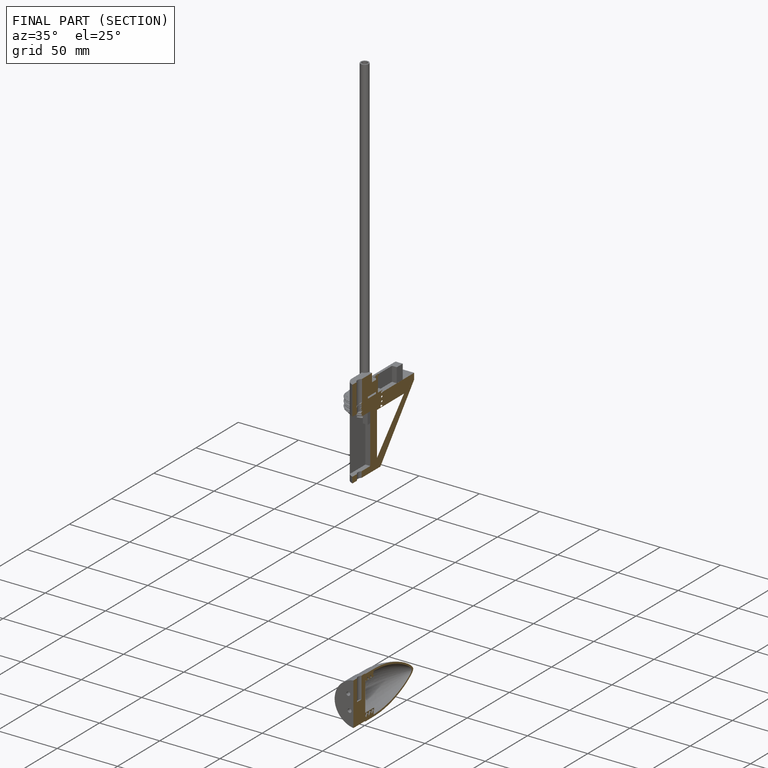
[diagram: finished part — half-section view (interior)]
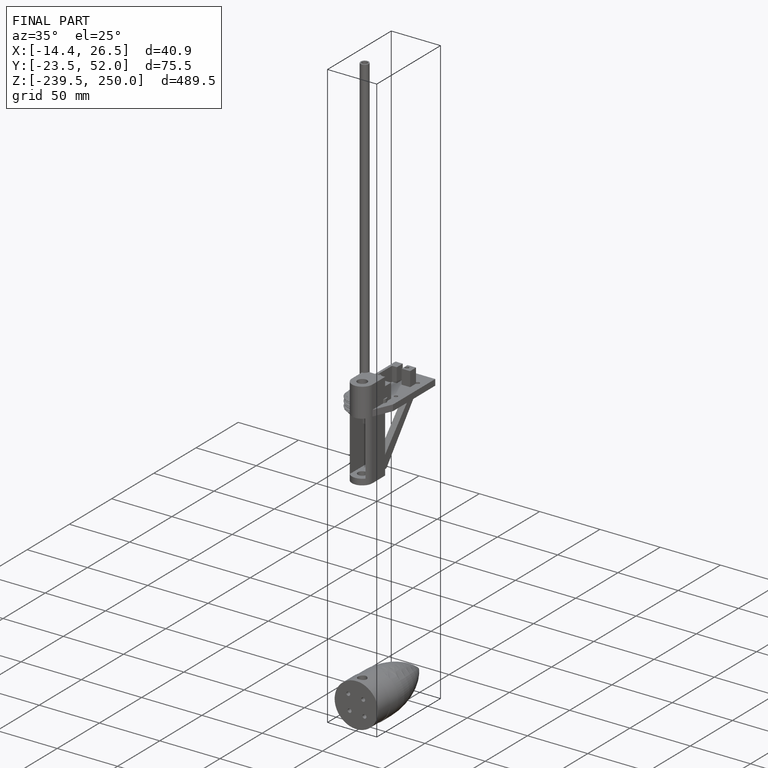
[diagram: finished part — iso view with bounding-box wireframe]
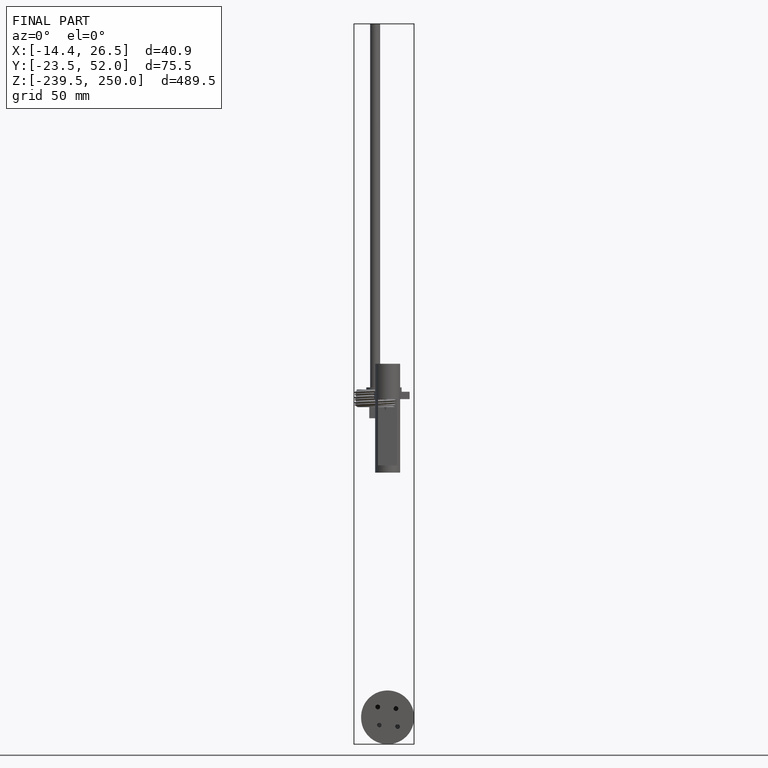
[diagram: finished part — front view with bounding-box wireframe]
